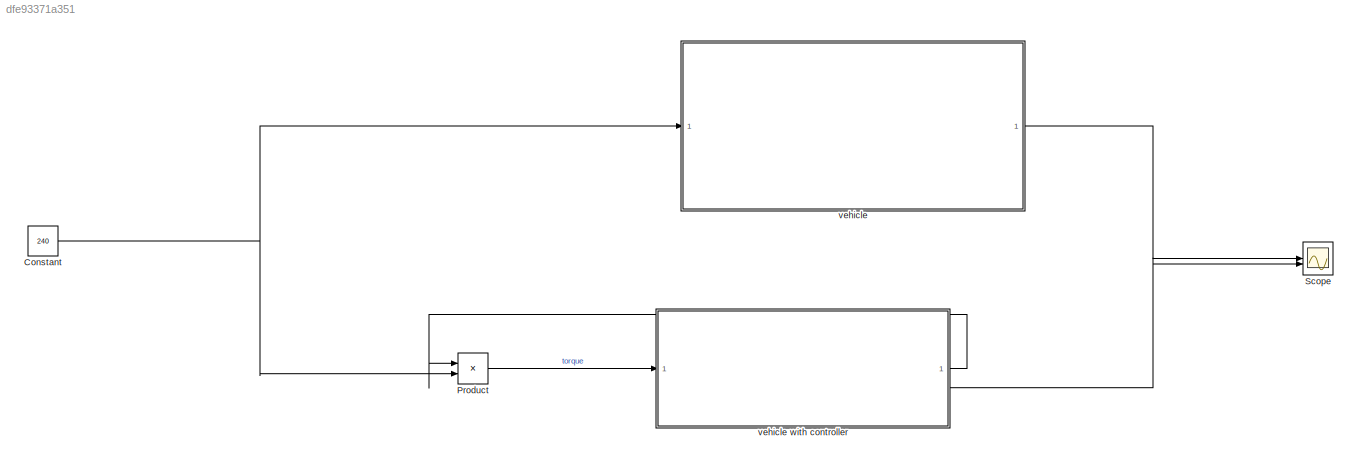
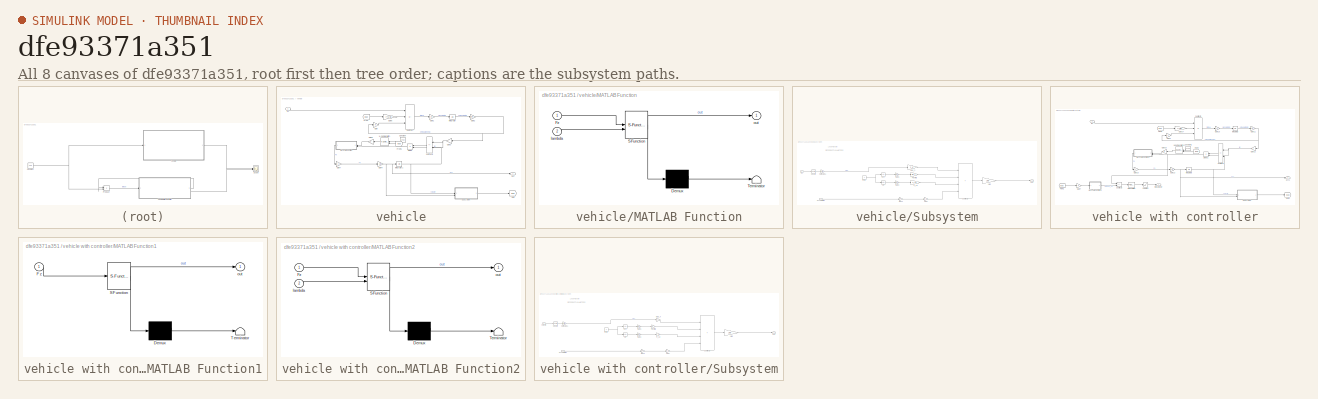
[diagram: thumbnail index - all 8 canvases of the model, root first then tree order]
MODEL slx_dfe93371a351
KIND model
CONFIG AbsTol = auto
CONFIG EnableMultiTasking = off
CONFIG FixedStep = auto
CONFIG MaxStep = auto
CONFIG MinStep = auto
CONFIG RelTol = 1e-3
CONFIG SampleTimeConstraint = Unconstrained
CONFIG SolverName = VariableStepAuto
CONFIG StartTime = 0.0
CONFIG StopTime = 7
BLOCK [Constant] Constant
  Value = 240
BLOCK [Product] Product
BLOCK [Scope] Scope
  Floating = off
  NumInputPorts = 2
  ScopeSpecificationString = Simulink.scopes.TimeScopeBlockCfg('CurrentConfiguration', extmgr.ConfigurationSet(extmgr.Configuration('Core','General UI',true),extmgr.Configuration('Core','Source UI',true),extmgr.Configuration('Sources','WiredSimulink',true),extmgr.Configuration('Visuals','Time Domain',true,'SerializedDisplays',{struct('MinYLimReal','3.39429','MaxYLimReal','3.66129','YLabelReal','','MinYLimMag','3.39429','MaxYL...<+1353ch>
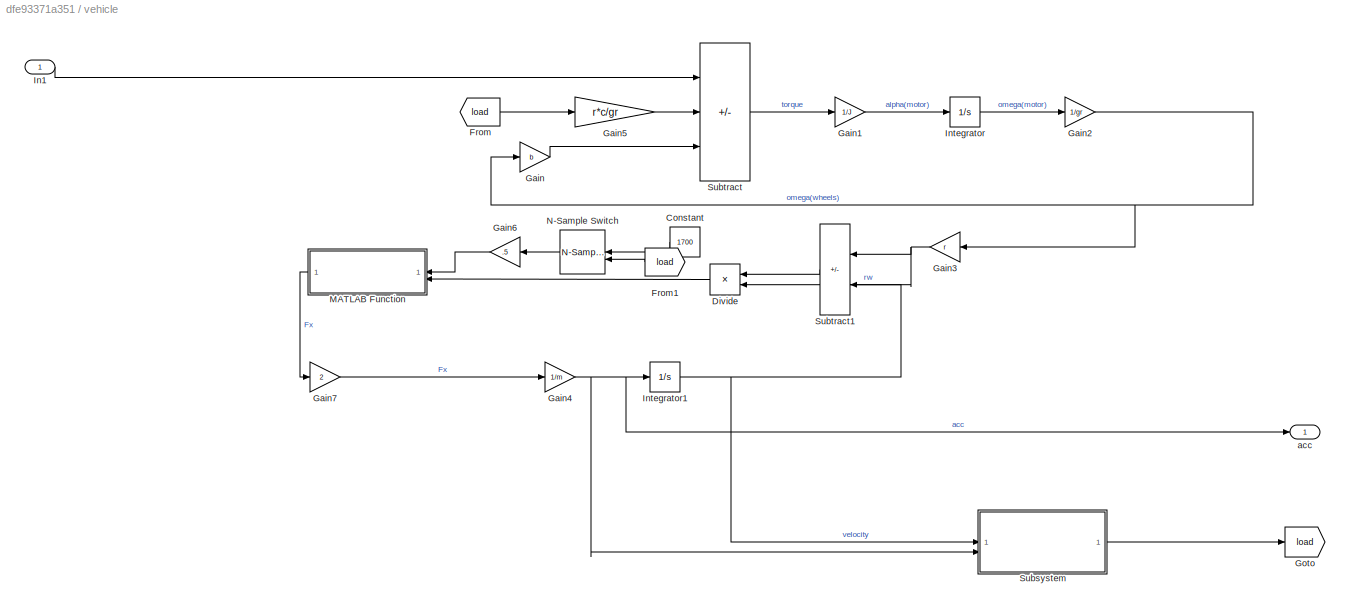
BLOCK [SubSystem] vehicle
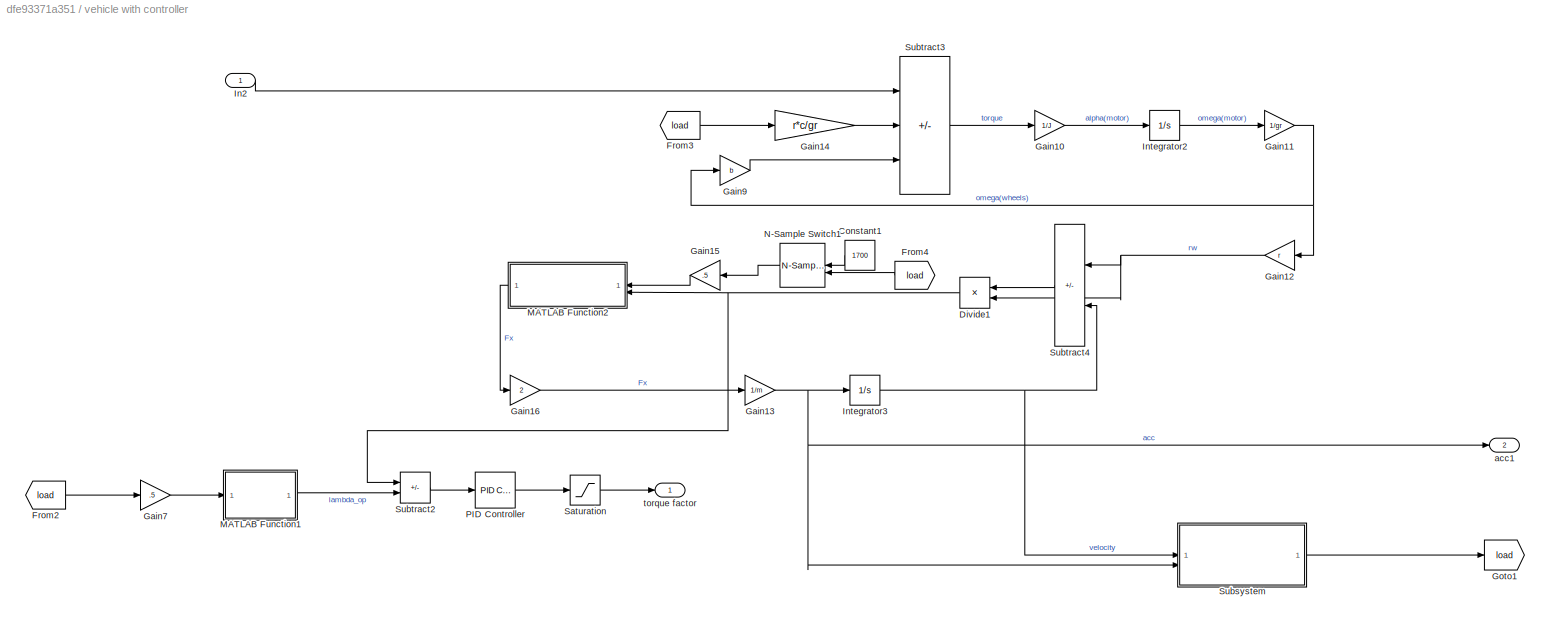
BLOCK [SubSystem] vehicle with controller
BLOCK [Constant] vehicle with controller/Constant1
  Value = 1700
BLOCK [Product] vehicle with controller/Divide1
  Inputs = */
BLOCK [From] vehicle with controller/From2
  GotoTag = load
BLOCK [From] vehicle with controller/From3
  GotoTag = load
BLOCK [From] vehicle with controller/From4
  GotoTag = load
BLOCK [Gain] vehicle with controller/Gain10
  Gain = 1/J
BLOCK [Gain] vehicle with controller/Gain11
  Gain = 1/gr
BLOCK [Gain] vehicle with controller/Gain12
  Gain = r
BLOCK [Gain] vehicle with controller/Gain13
  Gain = 1/m
BLOCK [Gain] vehicle with controller/Gain14
  Gain = r*c/gr
BLOCK [Gain] vehicle with controller/Gain15
  Gain = .5
BLOCK [Gain] vehicle with controller/Gain16
  Gain = 2
BLOCK [Gain] vehicle with controller/Gain7
  Gain = .5
BLOCK [Gain] vehicle with controller/Gain9
  Gain = b
BLOCK [Goto] vehicle with controller/Goto1
  GotoTag = load
BLOCK [Inport] vehicle with controller/In2
BLOCK [Integrator] vehicle with controller/Integrator2
  InitialCondition = 86.13
BLOCK [Integrator] vehicle with controller/Integrator3
  InitialCondition = 1
BLOCK [SubSystem] vehicle with controller/MATLAB Function1
  ErrorFcn = Stateflow.Translate.translate
  PermitHierarchicalResolution = ExplicitOnly
  SFBlockType = MATLAB Function
  TreatAsAtomicUnit = on
BLOCK [Demux] vehicle with controller/MATLAB Function1/ Demux 
  Outputs = 1
BLOCK [S-Function] vehicle with controller/MATLAB Function1/ SFunction 
  EnableBusSupport = on
  FunctionName = sf_sfun
  PortCounts = [1 2]
  SFcnIsStateOwnerBlock = off
  SFunctionDeploymentMode = off
  Tag = Stateflow S-Function 3
BLOCK [Terminator] vehicle with controller/MATLAB Function1/ Terminator 
BLOCK [Inport] vehicle with controller/MATLAB Function1/Fz
BLOCK [Outport] vehicle with controller/MATLAB Function1/out
BLOCK [SubSystem] vehicle with controller/MATLAB Function2
  ErrorFcn = Stateflow.Translate.translate
  PermitHierarchicalResolution = ExplicitOnly
  SFBlockType = MATLAB Function
  TreatAsAtomicUnit = on
BLOCK [Demux] vehicle with controller/MATLAB Function2/ Demux 
  Outputs = 1
BLOCK [S-Function] vehicle with controller/MATLAB Function2/ SFunction 
  EnableBusSupport = on
  FunctionName = sf_sfun
  PortCounts = [2 2]
  SFcnIsStateOwnerBlock = off
  SFunctionDeploymentMode = off
  Tag = Stateflow S-Function 4
BLOCK [Terminator] vehicle with controller/MATLAB Function2/ Terminator 
BLOCK [Inport] vehicle with controller/MATLAB Function2/Fz
BLOCK [Inport] vehicle with controller/MATLAB Function2/lambda
  Port = 2
BLOCK [Outport] vehicle with controller/MATLAB Function2/out
BLOCK [Reference] vehicle with controller/N-Sample Switch1  REF=dspswit3/N-Sample
Switch
  SourceBlock = dspswit3/N-Sample\nSwitch
  SourceType = N-Sample Switch
BLOCK [Reference] vehicle with controller/PID Controller  REF=slpidlib/PID Controller
  SourceBlock = slpidlib/PID Controller
  SourceType = PID 1dof
BLOCK [Saturate] vehicle with controller/Saturation
  LowerLimit = 0
  UpperLimit = 1
BLOCK [SubSystem] vehicle with controller/Subsystem
BLOCK [Gain] vehicle with controller/Subsystem/0.5(rho)CdA
  Gain = 0.5*rho*Cd*A
BLOCK [Gain] vehicle with controller/Subsystem/1//wb
  Gain = 1/wb
BLOCK [Trigonometry] vehicle with controller/Subsystem/Cos
  Operator = cos
BLOCK [Gain] vehicle with controller/Subsystem/Front WB
  Gain = wb_f
BLOCK [Gain] vehicle with controller/Subsystem/Gain5
  Gain = m* g
BLOCK [Gain] vehicle with controller/Subsystem/Gain6
  Gain = m* g
BLOCK [Outport] vehicle with controller/Subsystem/Out1
BLOCK [Trigonometry] vehicle with controller/Subsystem/Sin
BLOCK [Math] vehicle with controller/Subsystem/Square
  Operator = square
BLOCK [Sum] vehicle with controller/Subsystem/Subtract2
  IconShape = rectangular
  Inputs = ++++
BLOCK [Inport] vehicle with controller/Subsystem/accelaration
  Port = 2
BLOCK [Gain] vehicle with controller/Subsystem/drag_h
  Gain = h_d
BLOCK [Gain] vehicle with controller/Subsystem/h(cg)
  Gain = h_cg
BLOCK [Gain] vehicle with controller/Subsystem/h_cg
  Gain = h_cg
BLOCK [Gain] vehicle with controller/Subsystem/mass
  Gain = m
BLOCK [Constant] vehicle with controller/Subsystem/theta
  Value = 0
BLOCK [Inport] vehicle with controller/Subsystem/velocity
BLOCK [Sum] vehicle with controller/Subtract2
  IconShape = rectangular
  Inputs = -+
BLOCK [Sum] vehicle with controller/Subtract3
  IconShape = rectangular
  Inputs = +--
BLOCK [Sum] vehicle with controller/Subtract4
  IconShape = rectangular
  Inputs = +-
BLOCK [Outport] vehicle with controller/acc1
  Port = 2
BLOCK [Outport] vehicle with controller/torque factor
BLOCK [Constant] vehicle/Constant
  Value = 1700
BLOCK [Product] vehicle/Divide
  Inputs = */
BLOCK [From] vehicle/From
  GotoTag = load
BLOCK [From] vehicle/From1
  GotoTag = load
BLOCK [Gain] vehicle/Gain
  Gain = b
BLOCK [Gain] vehicle/Gain1
  Gain = 1/J
BLOCK [Gain] vehicle/Gain2
  Gain = 1/gr
BLOCK [Gain] vehicle/Gain3
  Gain = r
BLOCK [Gain] vehicle/Gain4
  Gain = 1/m
BLOCK [Gain] vehicle/Gain5
  Gain = r*c/gr
BLOCK [Gain] vehicle/Gain6
  Gain = .5
BLOCK [Gain] vehicle/Gain7
  Gain = 2
BLOCK [Goto] vehicle/Goto
  GotoTag = load
BLOCK [Inport] vehicle/In1
BLOCK [Integrator] vehicle/Integrator
  InitialCondition = 86.13
BLOCK [Integrator] vehicle/Integrator1
  InitialCondition = 1
BLOCK [SubSystem] vehicle/MATLAB Function
  ErrorFcn = Stateflow.Translate.translate
  PermitHierarchicalResolution = ExplicitOnly
  SFBlockType = MATLAB Function
  TreatAsAtomicUnit = on
BLOCK [Demux] vehicle/MATLAB Function/ Demux 
  Outputs = 1
BLOCK [S-Function] vehicle/MATLAB Function/ SFunction 
  EnableBusSupport = on
  FunctionName = sf_sfun
  PortCounts = [2 2]
  SFcnIsStateOwnerBlock = off
  SFunctionDeploymentMode = off
  Tag = Stateflow S-Function 2
BLOCK [Terminator] vehicle/MATLAB Function/ Terminator 
BLOCK [Inport] vehicle/MATLAB Function/Fz
BLOCK [Inport] vehicle/MATLAB Function/lambda
  Port = 2
BLOCK [Outport] vehicle/MATLAB Function/out
BLOCK [Reference] vehicle/N-Sample Switch  REF=dspswit3/N-Sample
Switch
  SourceBlock = dspswit3/N-Sample\nSwitch
  SourceType = N-Sample Switch
BLOCK [SubSystem] vehicle/Subsystem
BLOCK [Gain] vehicle/Subsystem/0.5(rho)CdA
  Gain = 0.5*rho*Cd*A
BLOCK [Gain] vehicle/Subsystem/1//wb
  Gain = 1/wb
BLOCK [Trigonometry] vehicle/Subsystem/Cos
  Operator = cos
BLOCK [Gain] vehicle/Subsystem/Front WB
  Gain = wb_f
BLOCK [Gain] vehicle/Subsystem/Gain5
  Gain = m* g
BLOCK [Gain] vehicle/Subsystem/Gain6
  Gain = m* g
BLOCK [Inport] vehicle/Subsystem/In1
BLOCK [Outport] vehicle/Subsystem/Out1
BLOCK [Trigonometry] vehicle/Subsystem/Sin
BLOCK [Math] vehicle/Subsystem/Square
  Operator = square
BLOCK [Sum] vehicle/Subsystem/Subtract2
  IconShape = rectangular
  Inputs = ++++
BLOCK [Inport] vehicle/Subsystem/accelaration
  Port = 2
BLOCK [Gain] vehicle/Subsystem/drag_h
  Gain = h_d
BLOCK [Gain] vehicle/Subsystem/h(cg)
  Gain = h_cg
BLOCK [Gain] vehicle/Subsystem/h_cg
  Gain = h_cg
BLOCK [Gain] vehicle/Subsystem/mass
  Gain = m
BLOCK [Constant] vehicle/Subsystem/theta
  Value = 0
BLOCK [Sum] vehicle/Subtract
  IconShape = rectangular
  Inputs = +--
BLOCK [Sum] vehicle/Subtract1
  IconShape = rectangular
  Inputs = +-
BLOCK [Outport] vehicle/acc
ANNOTATION vehicle with controller/Subsystem: DIFFERENT PARAMETERS
ANNOTATION vehicle with controller/Subsystem: Load Transfer
ANNOTATION vehicle/Subsystem: DIFFERENT PARAMETERS
ANNOTATION vehicle/Subsystem: Load Transfer
NET Constant:1 -> Product:2, vehicle:1
LINE Product:1 -> vehicle with controller:1
LINE vehicle with controller/Constant1:1 -> vehicle with controller/N-Sample Switch1:1
NET vehicle with controller/Divide1:1 -> vehicle with controller/MATLAB Function2:2, vehicle with controller/Subtract2:1
LINE vehicle with controller/From2:1 -> vehicle with controller/Gain7:1
LINE vehicle with controller/From3:1 -> vehicle with controller/Gain14:1
LINE vehicle with controller/From4:1 -> vehicle with controller/N-Sample Switch1:2
LINE vehicle with controller/Gain10:1 -> vehicle with controller/Integrator2:1
NET vehicle with controller/Gain11:1 -> vehicle with controller/Gain12:1, vehicle with controller/Gain9:1
NET vehicle with controller/Gain12:1 -> vehicle with controller/Divide1:2, vehicle with controller/Subtract4:1
NET vehicle with controller/Gain13:1 -> vehicle with controller/Integrator3:1, vehicle with controller/Subsystem:2, vehicle with controller/acc1:1
LINE vehicle with controller/Gain14:1 -> vehicle with controller/Subtract3:2
LINE vehicle with controller/Gain15:1 -> vehicle with controller/MATLAB Function2:1
LINE vehicle with controller/Gain16:1 -> vehicle with controller/Gain13:1
LINE vehicle with controller/Gain7:1 -> vehicle with controller/MATLAB Function1:1
LINE vehicle with controller/Gain9:1 -> vehicle with controller/Subtract3:3
LINE vehicle with controller/In2:1 -> vehicle with controller/Subtract3:1
LINE vehicle with controller/Integrator2:1 -> vehicle with controller/Gain11:1
NET vehicle with controller/Integrator3:1 -> vehicle with controller/Subsystem:1, vehicle with controller/Subtract4:2
LINE vehicle with controller/MATLAB Function1:1 -> vehicle with controller/Subtract2:2
LINE vehicle with controller/MATLAB Function2:1 -> vehicle with controller/Gain16:1
LINE vehicle with controller/N-Sample Switch1:1 -> vehicle with controller/Gain15:1
LINE vehicle with controller/PID Controller:1 -> vehicle with controller/Saturation:1
LINE vehicle with controller/Saturation:1 -> vehicle with controller/torque factor:1
LINE vehicle with controller/Subsystem/0.5(rho)CdA:1 -> vehicle with controller/Subsystem/drag_h:1
LINE vehicle with controller/Subsystem/1//wb:1 -> vehicle with controller/Subsystem/Out1:1
LINE vehicle with controller/Subsystem/Cos:1 -> vehicle with controller/Subsystem/Gain5:1
LINE vehicle with controller/Subsystem/Front WB:1 -> vehicle with controller/Subsystem/Subtract2:2
LINE vehicle with controller/Subsystem/Gain5:1 -> vehicle with controller/Subsystem/Front WB:1
LINE vehicle with controller/Subsystem/Gain6:1 -> vehicle with controller/Subsystem/h_cg:1
LINE vehicle with controller/Subsystem/Sin:1 -> vehicle with controller/Subsystem/Gain6:1
LINE vehicle with controller/Subsystem/Square:1 -> vehicle with controller/Subsystem/0.5(rho)CdA:1
LINE vehicle with controller/Subsystem/Subtract2:1 -> vehicle with controller/Subsystem/1//wb:1
LINE vehicle with controller/Subsystem/accelaration:1 -> vehicle with controller/Subsystem/mass:1
LINE vehicle with controller/Subsystem/drag_h:1 -> vehicle with controller/Subsystem/Subtract2:1
LINE vehicle with controller/Subsystem/h(cg):1 -> vehicle with controller/Subsystem/Subtract2:4
LINE vehicle with controller/Subsystem/h_cg:1 -> vehicle with controller/Subsystem/Subtract2:3
LINE vehicle with controller/Subsystem/mass:1 -> vehicle with controller/Subsystem/h(cg):1
NET vehicle with controller/Subsystem/theta:1 -> vehicle with controller/Subsystem/Cos:1, vehicle with controller/Subsystem/Sin:1
LINE vehicle with controller/Subsystem/velocity:1 -> vehicle with controller/Subsystem/Square:1
LINE vehicle with controller/Subsystem:1 -> vehicle with controller/Goto1:1
LINE vehicle with controller/Subtract2:1 -> vehicle with controller/PID Controller:1
LINE vehicle with controller/Subtract3:1 -> vehicle with controller/Gain10:1
LINE vehicle with controller/Subtract4:1 -> vehicle with controller/Divide1:1
LINE vehicle with controller:1 -> Product:1
LINE vehicle with controller:2 -> Scope:2
LINE vehicle/Constant:1 -> vehicle/N-Sample Switch:1
LINE vehicle/Divide:1 -> vehicle/MATLAB Function:2
LINE vehicle/From1:1 -> vehicle/N-Sample Switch:2
LINE vehicle/From:1 -> vehicle/Gain5:1
LINE vehicle/Gain1:1 -> vehicle/Integrator:1
NET vehicle/Gain2:1 -> vehicle/Gain3:1, vehicle/Gain:1
NET vehicle/Gain3:1 -> vehicle/Divide:2, vehicle/Subtract1:1
NET vehicle/Gain4:1 -> vehicle/Integrator1:1, vehicle/Subsystem:2, vehicle/acc:1
LINE vehicle/Gain5:1 -> vehicle/Subtract:2
LINE vehicle/Gain6:1 -> vehicle/MATLAB Function:1
LINE vehicle/Gain7:1 -> vehicle/Gain4:1
LINE vehicle/Gain:1 -> vehicle/Subtract:3
LINE vehicle/In1:1 -> vehicle/Subtract:1
NET vehicle/Integrator1:1 -> vehicle/Subsystem:1, vehicle/Subtract1:2
LINE vehicle/Integrator:1 -> vehicle/Gain2:1
LINE vehicle/MATLAB Function:1 -> vehicle/Gain7:1
LINE vehicle/N-Sample Switch:1 -> vehicle/Gain6:1
LINE vehicle/Subsystem/0.5(rho)CdA:1 -> vehicle/Subsystem/drag_h:1
LINE vehicle/Subsystem/1//wb:1 -> vehicle/Subsystem/Out1:1
LINE vehicle/Subsystem/Cos:1 -> vehicle/Subsystem/Gain5:1
LINE vehicle/Subsystem/Front WB:1 -> vehicle/Subsystem/Subtract2:2
LINE vehicle/Subsystem/Gain5:1 -> vehicle/Subsystem/Front WB:1
LINE vehicle/Subsystem/Gain6:1 -> vehicle/Subsystem/h_cg:1
LINE vehicle/Subsystem/In1:1 -> vehicle/Subsystem/Square:1
LINE vehicle/Subsystem/Sin:1 -> vehicle/Subsystem/Gain6:1
LINE vehicle/Subsystem/Square:1 -> vehicle/Subsystem/0.5(rho)CdA:1
LINE vehicle/Subsystem/Subtract2:1 -> vehicle/Subsystem/1//wb:1
LINE vehicle/Subsystem/accelaration:1 -> vehicle/Subsystem/mass:1
LINE vehicle/Subsystem/drag_h:1 -> vehicle/Subsystem/Subtract2:1
LINE vehicle/Subsystem/h(cg):1 -> vehicle/Subsystem/Subtract2:4
LINE vehicle/Subsystem/h_cg:1 -> vehicle/Subsystem/Subtract2:3
LINE vehicle/Subsystem/mass:1 -> vehicle/Subsystem/h(cg):1
NET vehicle/Subsystem/theta:1 -> vehicle/Subsystem/Cos:1, vehicle/Subsystem/Sin:1
LINE vehicle/Subsystem:1 -> vehicle/Goto:1
LINE vehicle/Subtract1:1 -> vehicle/Divide:1
LINE vehicle/Subtract:1 -> vehicle/Gain1:1
LINE vehicle:1 -> Scope:1
note: NET lines group one-source signal fan-out (src -> all destinations, sorted); 1:1 wires keep LINE
CHART vehicle with controller/MATLAB Function1 states=1 transitions=1
  STATE_LABEL 'eML_blk_kernel()'
  STATE_LABEL 'SCRIPT:\nfunction out=packeja(Fz)\n    \n    a1=-2.13*(10^-5);\n    a2=1.144;\n    a3=4.96*(10^-5);\n    a4=.226;\n    a5=6.9*(10^-5);\n    a6=-6*(10^-9);\n    a7=5.6*(10*(-5));\n    a8=.486;\n    \n    lambda=0:.005:1;\n    Cx=1.65;\n    Dx=a1*Fz*Fz+a2*Fz;\n    func1=(a3*Fz*Fz+a4*Fz)*exp(-a5*Fz);\n    Bx=func1/(Cx*Dx);\n    Ex=a6*Fz*Fz+a7*Fz+a8;\n    G=Bx*lambda;\n    func2=G*(1-Ex)+Ex*atan(G);\n    Fx=Dx*sin(Cx*ata...<+90ch>'
CHART vehicle with controller/MATLAB Function2 states=1 transitions=1
  STATE_LABEL 'eML_blk_kernel()'
  STATE_LABEL 'SCRIPT:\nfunction out=force(Fz,lambda)\n    \n    \n    a1=-2.13*(10^-5);\n    a2=1.144;\n    a3=4.96*(10^-5);\n    a4=.226;\n    a5=6.9*(10^-5);\n    a6=-6*(10^-9);\n    a7=5.6*(10*(-5));\n    a8=.486;\n    \n    \n    Cx=1.65;\n    Dx=a1*Fz*Fz+a2*Fz;\n    func1=(a3*Fz*Fz+a4*Fz)*exp(-a5*Fz);\n    Bx=func1/(Cx*Dx);\n    Ex=a6*Fz*Fz+a7*Fz+a8;\n    G=Bx*lambda;\n    func2=G*(1-Ex)+Ex*atan(G);\n    Fx=Dx*sin(Cx*atan(func...<+22ch>'
CHART vehicle/MATLAB Function states=1 transitions=1
  STATE_LABEL 'eML_blk_kernel()'
  STATE_LABEL 'SCRIPT:\nfunction out=force(Fz,lambda)\n    \n    \n    a1=-2.13*(10^-5);\n    a2=1.144;\n    a3=4.96*(10^-5);\n    a4=.226;\n    a5=6.9*(10^-5);\n    a6=-6*(10^-9);\n    a7=5.6*(10*(-5));\n    a8=.486;\n    \n    \n    Cx=1.65;\n    Dx=a1*Fz*Fz+a2*Fz;\n    func1=(a3*Fz*Fz+a4*Fz)*exp(-a5*Fz);\n    Bx=func1/(Cx*Dx);\n    Ex=a6*Fz*Fz+a7*Fz+a8;\n    G=Bx*lambda;\n    func2=G*(1-Ex)+Ex*atan(G);\n    Fx=Dx*sin(Cx*atan(func...<+22ch>'
CHART  states=0 transitions=0
CHART  states=0 transitions=0
CHART  states=0 transitions=0
